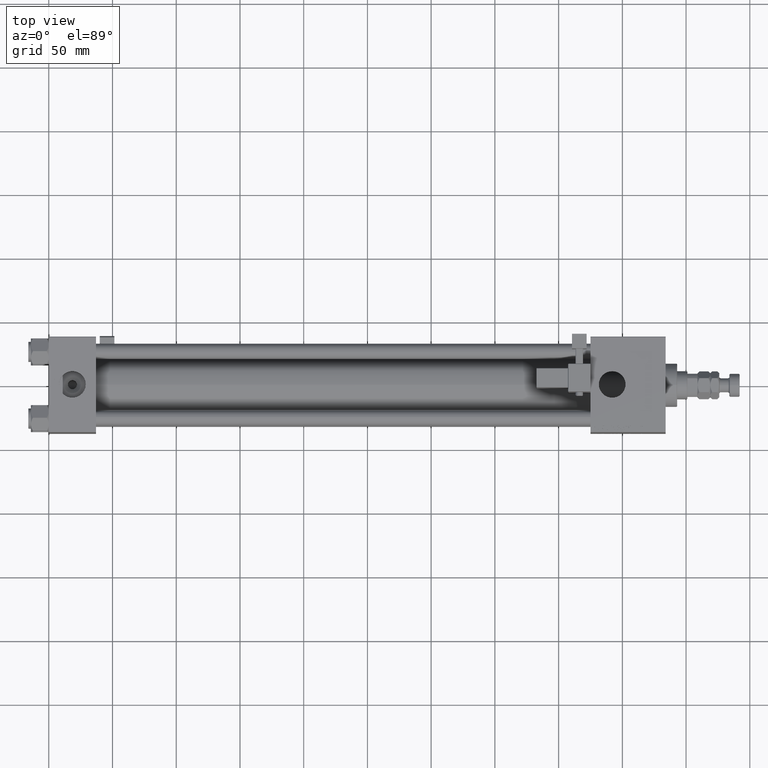
[diagram: clean part render]
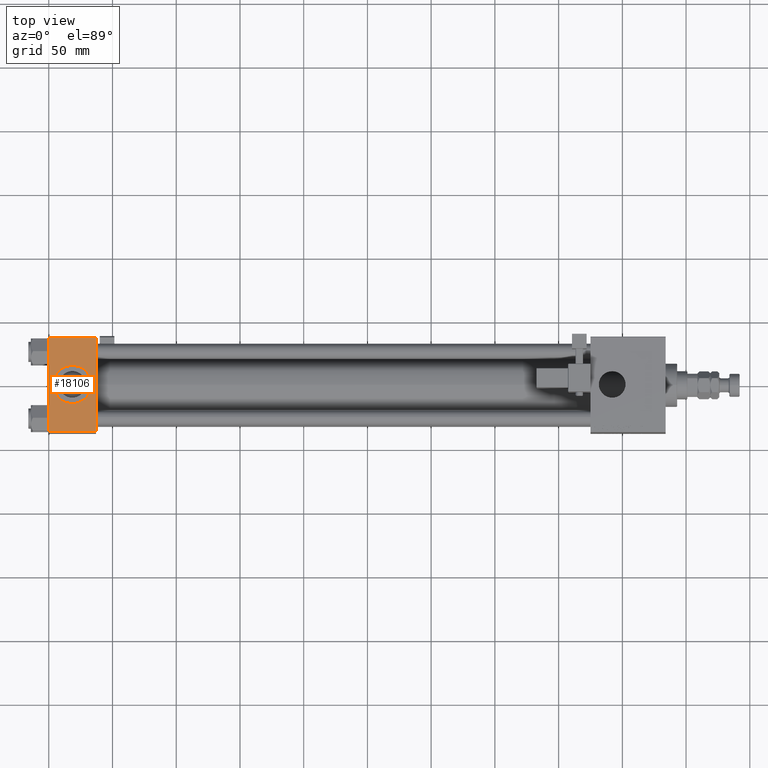
[diagram: same view with one face highlighted and labeled with its STEP entity id]
A machine part, top view. The second image highlights one B-rep face of the part: STEP entity #18106.
In plain terms, the highlighted planar face has unit normal (0, 0, -1).
Its self-contained STEP definition (entity closure, byte-faithful):
#269 = CARTESIAN_POINT ( 'NONE',  ( 0.000000000000000000, 37.49999999999999289, 37.50000000000000000 ) ) ;
#705 = EDGE_CURVE ( 'NONE', #42710, #9670, #19311, .T. ) ;
#1342 = CARTESIAN_POINT ( 'NONE',  ( 37.00000000000000000, 37.49999999999999289, 37.50000000000000000 ) ) ;
#1345 = DIRECTION ( 'NONE',  ( 0.000000000000000000, -1.000000000000000000, -9.251858538542971581E-17 ) ) ;
#1484 = DIRECTION ( 'NONE',  ( 1.000000000000000000, 0.000000000000000000, 0.000000000000000000 ) ) ;
#2837 = CARTESIAN_POINT ( 'NONE',  ( 33.50000000000000000, -5.204170427930421283E-15, 37.50000000000000000 ) ) ;
#4776 = ORIENTED_EDGE ( 'NONE', *, *, #35454, .F. ) ;
#4947 = AXIS2_PLACEMENT_3D ( 'NONE', #1342, #30670, #39431 ) ;
#5015 = VECTOR ( 'NONE', #27439, 1000.000000000000000 ) ;
#6070 = LINE ( 'NONE', #35405, #5015 ) ;
#6178 = ORIENTED_EDGE ( 'NONE', *, *, #28551, .F. ) ;
#6739 = VERTEX_POINT ( 'NONE', #53852 ) ;
#8881 = EDGE_LOOP ( 'NONE', ( #50053, #51209, #4776, #12802 ) ) ;
#9477 = EDGE_CURVE ( 'NONE', #17187, #6739, #12443, .T. ) ;
#9670 = VERTEX_POINT ( 'NONE', #2837 ) ;
#9685 = DIRECTION ( 'NONE',  ( 0.000000000000000000, 0.000000000000000000, 1.000000000000000000 ) ) ;
#12443 = LINE ( 'NONE', #42612, #43130 ) ;
#12802 = ORIENTED_EDGE ( 'NONE', *, *, #42069, .T. ) ;
#13288 = CARTESIAN_POINT ( 'NONE',  ( 18.50000000000000000, -5.204170427930421283E-15, 37.50000000000000000 ) ) ;
#14469 = VERTEX_POINT ( 'NONE', #42889 ) ;
#15864 = DIRECTION ( 'NONE',  ( 0.000000000000000000, -1.000000000000000000, -9.251858538542971581E-17 ) ) ;
#17187 = VERTEX_POINT ( 'NONE', #41230 ) ;
#18106 = ADVANCED_FACE ( 'NONE', ( #38888, #35327 ), #43539, .F. ) ;
#18504 = EDGE_LOOP ( 'NONE', ( #6178, #50648 ) ) ;
#19281 = AXIS2_PLACEMENT_3D ( 'NONE', #13288, #34688, #51405 ) ;
#19311 = CIRCLE ( 'NONE', #19281, 15.00000000000000355 ) ;
#25903 = DIRECTION ( 'NONE',  ( 1.000000000000000000, 0.000000000000000000, 0.000000000000000000 ) ) ;
#27439 = DIRECTION ( 'NONE',  ( -1.000000000000000000, 0.000000000000000000, 0.000000000000000000 ) ) ;
#28345 = CARTESIAN_POINT ( 'NONE',  ( 0.000000000000000000, 36.99999999999999289, 37.50000000000000000 ) ) ;
#28551 = EDGE_CURVE ( 'NONE', #9670, #42710, #29073, .T. ) ;
#29073 = CIRCLE ( 'NONE', #37827, 15.00000000000000355 ) ;
#29985 = VECTOR ( 'NONE', #1345, 1000.000000000000000 ) ;
#30670 = DIRECTION ( 'NONE',  ( 0.000000000000000000, 9.251858538542971581E-17, -1.000000000000000000 ) ) ;
#32060 = LINE ( 'NONE', #36161, #42371 ) ;
#34688 = DIRECTION ( 'NONE',  ( 0.000000000000000000, 0.000000000000000000, 1.000000000000000000 ) ) ;
#34791 = LINE ( 'NONE', #269, #29985 ) ;
#35327 = FACE_OUTER_BOUND ( 'NONE', #8881, .T. ) ;
#35405 = CARTESIAN_POINT ( 'NONE',  ( 0.000000000000000000, 36.99999999999999289, 37.50000000000000000 ) ) ;
#35454 = EDGE_CURVE ( 'NONE', #14469, #6739, #32060, .T. ) ;
#36161 = CARTESIAN_POINT ( 'NONE',  ( 37.00000000000000000, 37.49999999999999289, 37.50000000000000000 ) ) ;
#37056 = VERTEX_POINT ( 'NONE', #28345 ) ;
#37827 = AXIS2_PLACEMENT_3D ( 'NONE', #47239, #9685, #1484 ) ;
#38888 = FACE_BOUND ( 'NONE', #18504, .T. ) ;
#39431 = DIRECTION ( 'NONE',  ( 0.000000000000000000, 1.000000000000000000, 9.251858538542971581E-17 ) ) ;
#41230 = CARTESIAN_POINT ( 'NONE',  ( 0.000000000000000000, -37.00000000000000711, 37.49999999999999289 ) ) ;
#42069 = EDGE_CURVE ( 'NONE', #14469, #37056, #6070, .T. ) ;
#42371 = VECTOR ( 'NONE', #15864, 1000.000000000000000 ) ;
#42612 = CARTESIAN_POINT ( 'NONE',  ( 37.00000000000000000, -37.00000000000000711, 37.49999999999999289 ) ) ;
#42710 = VERTEX_POINT ( 'NONE', #44558 ) ;
#42889 = CARTESIAN_POINT ( 'NONE',  ( 37.00000000000000000, 36.99999999999999289, 37.50000000000000000 ) ) ;
#43130 = VECTOR ( 'NONE', #25903, 1000.000000000000000 ) ;
#43539 = PLANE ( 'NONE',  #4947 ) ;
#44558 = CARTESIAN_POINT ( 'NONE',  ( 3.499999999999997780, -3.367200229209391300E-15, 37.50000000000000000 ) ) ;
#47239 = CARTESIAN_POINT ( 'NONE',  ( 18.50000000000000000, -5.204170427930421283E-15, 37.50000000000000000 ) ) ;
#49162 = EDGE_CURVE ( 'NONE', #37056, #17187, #34791, .T. ) ;
#50053 = ORIENTED_EDGE ( 'NONE', *, *, #49162, .T. ) ;
#50648 = ORIENTED_EDGE ( 'NONE', *, *, #705, .F. ) ;
#51209 = ORIENTED_EDGE ( 'NONE', *, *, #9477, .T. ) ;
#51405 = DIRECTION ( 'NONE',  ( 1.000000000000000000, 0.000000000000000000, 0.000000000000000000 ) ) ;
#53852 = CARTESIAN_POINT ( 'NONE',  ( 37.00000000000000000, -37.00000000000000711, 37.49999999999999289 ) ) ;